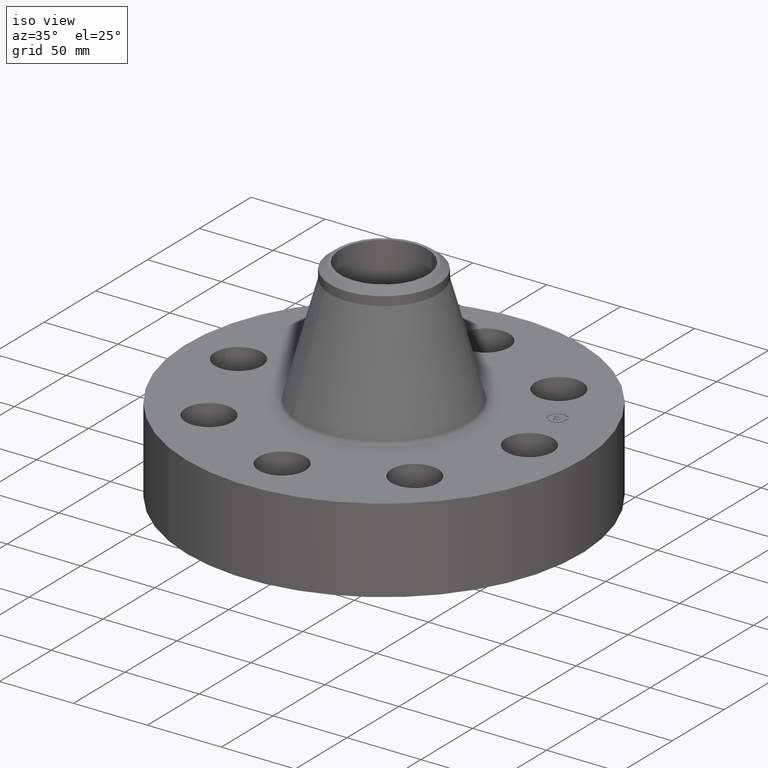
[diagram: clean part render]
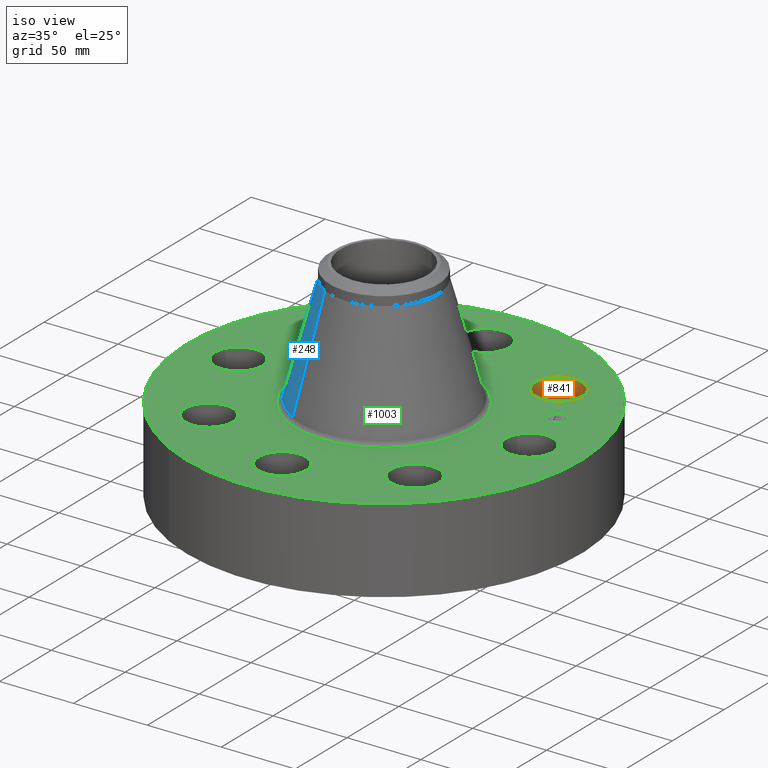
[diagram: same view with three faces highlighted in distinct colors, each labeled with its STEP entity id]
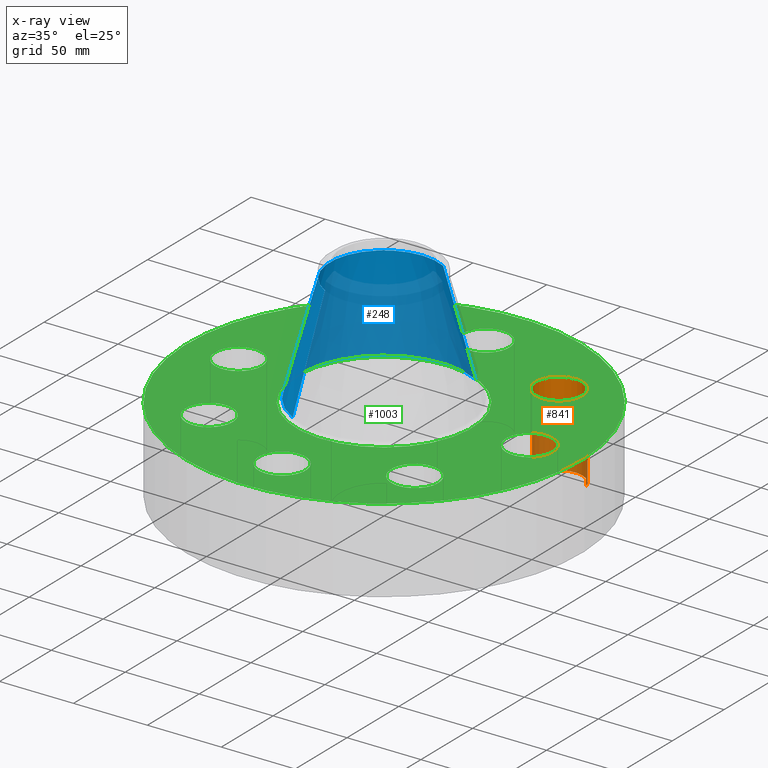
[diagram: x-ray of the same camera — body ghosted, the three highlighted faces saturated]
A machine part, iso view with three faces highlighted in distinct colors.
The next image is the same camera in x-ray (body ghosted, the three faces saturated) — at least one of them is partly hidden behind the body in this view.
Their STEP definitions:

[orange] entity #841 — the highlighted cylindrical surface (edge-blend (fillet) strip) has radius 15.875 mm, axis along (0, 0, -1).
#622=AXIS2_PLACEMENT_3D('Circle Axis2P3D',#620,#621,$) ;
#814=AXIS2_PLACEMENT_3D('Cylinder Axis2P3D',#811,#812,#813) ;
#832=AXIS2_PLACEMENT_3D('Circle Axis2P3D',#830,#831,$) ;
#620=CARTESIAN_POINT('Axis2P3D Location',(2.74003877711,2.74003877711,0.)) ;
#624=CARTESIAN_POINT('Vertex',(2.14032025837,2.56407657014,0.)) ;
#626=CARTESIAN_POINT('Vertex',(3.33975729585,2.91600098407,-2.79741234551E-016)) ;
#811=CARTESIAN_POINT('Axis2P3D Location',(2.74003877711,2.74003877711,2.24606299213)) ;
#816=CARTESIAN_POINT('Line Origine',(2.14032025837,2.56407657014,1.125)) ;
#820=CARTESIAN_POINT('Vertex',(2.14032025837,2.56407657014,2.25000000001)) ;
#823=CARTESIAN_POINT('Line Origine',(3.33975729585,2.91600098407,1.125)) ;
#827=CARTESIAN_POINT('Vertex',(3.33975729585,2.91600098407,2.25000000001)) ;
#830=CARTESIAN_POINT('Axis2P3D Location',(2.74003877711,2.74003877711,2.25000000001)) ;
#621=DIRECTION('Axis2P3D Direction',(0.,0.,-0.0393700787402)) ;
#812=DIRECTION('Axis2P3D Direction',(0.,0.,-0.0393700787402)) ;
#813=DIRECTION('Axis2P3D XDirection',(0.0377775444876,0.0110842335096,0.)) ;
#817=DIRECTION('Vector Direction',(0.,0.,-0.0393700787402)) ;
#824=DIRECTION('Vector Direction',(0.,0.,-0.0393700787402)) ;
#831=DIRECTION('Axis2P3D Direction',(0.,0.,-0.0393700787402)) ;
#818=VECTOR('Line Direction',#817,0.0393700787402) ;
#825=VECTOR('Line Direction',#824,0.0393700787402) ;
#836=ORIENTED_EDGE('',*,*,#822,.F.) ;
#837=ORIENTED_EDGE('',*,*,#628,.T.) ;
#838=ORIENTED_EDGE('',*,*,#829,.T.) ;
#839=ORIENTED_EDGE('',*,*,#834,.F.) ;
#841=ADVANCED_FACE('PartBody',(#840),#815,.F.) ;
#623=CIRCLE('generated circle',#622,0.625000000003) ;
#833=CIRCLE('generated circle',#832,0.625000000003) ;
#815=CYLINDRICAL_SURFACE('generated cylinder',#814,0.625000000003) ;
#628=EDGE_CURVE('',#625,#627,#623,.T.) ;
#822=EDGE_CURVE('',#625,#821,#819,.F.) ;
#829=EDGE_CURVE('',#627,#828,#826,.F.) ;
#834=EDGE_CURVE('',#821,#828,#833,.T.) ;
#835=EDGE_LOOP('',(#836,#837,#838,#839)) ;
#840=FACE_OUTER_BOUND('',#835,.T.) ;
#819=LINE('Line',#816,#818) ;
#826=LINE('Line',#823,#825) ;
#625=VERTEX_POINT('',#624) ;
#627=VERTEX_POINT('',#626) ;
#821=VERTEX_POINT('',#820) ;
#828=VERTEX_POINT('',#827) ;

[blue] entity #248 — the highlighted conical surface has half-angle 15.204 deg.
#196=AXIS2_PLACEMENT_3D('Circle Axis2P3D',#194,#195,$) ;
#209=AXIS2_PLACEMENT_3D('Cone Axis2P3D',#206,#207,#208) ;
#239=AXIS2_PLACEMENT_3D('Circle Axis2P3D',#237,#238,$) ;
#167=CARTESIAN_POINT('Vertex',(1.06717279304,1.95344669461,2.33852946514)) ;
#174=CARTESIAN_POINT('Vertex',(-1.06717279304,-1.95344669461,2.33852946514)) ;
#194=CARTESIAN_POINT('Axis2P3D Location',(0.,0.,2.33852946514)) ;
#206=CARTESIAN_POINT('Axis2P3D Location',(0.,0.,5.2304984093)) ;
#211=CARTESIAN_POINT('Line Origine',(0.878772784319,1.60858279187,3.78451393722)) ;
#215=CARTESIAN_POINT('Vertex',(0.690372775593,1.26371888913,5.2304984093)) ;
#222=CARTESIAN_POINT('Vertex',(-0.690372775593,-1.26371888913,5.2304984093)) ;
#225=CARTESIAN_POINT('Line Origine',(-0.878772784319,-1.60858279187,3.78451393722)) ;
#237=CARTESIAN_POINT('Axis2P3D Location',(0.,0.,5.2304984093)) ;
#195=DIRECTION('Axis2P3D Direction',(0.,0.,-0.0393700787402)) ;
#207=DIRECTION('Axis2P3D Direction',(0.,0.,-0.0393700787402)) ;
#208=DIRECTION('Axis2P3D XDirection',(-0.0188750212049,-0.0345504945626,0.)) ;
#212=DIRECTION('Vector Direction',(0.00495005844131,0.00906102119858,-0.0379920770197)) ;
#226=DIRECTION('Vector Direction',(-0.00495005844131,-0.00906102119858,-0.0379920770197)) ;
#238=DIRECTION('Axis2P3D Direction',(0.,0.,-0.0393700787402)) ;
#213=VECTOR('Line Direction',#212,0.0393700787402) ;
#227=VECTOR('Line Direction',#226,0.0393700787402) ;
#243=ORIENTED_EDGE('',*,*,#198,.F.) ;
#244=ORIENTED_EDGE('',*,*,#229,.T.) ;
#245=ORIENTED_EDGE('',*,*,#241,.T.) ;
#246=ORIENTED_EDGE('',*,*,#217,.F.) ;
#248=ADVANCED_FACE('PartBody',(#247),#210,.T.) ;
#197=CIRCLE('generated circle',#196,2.22594064586) ;
#240=CIRCLE('generated circle',#239,1.44000000001) ;
#210=CONICAL_SURFACE('Cone',#209,1.44000000001,0.265357691976) ;
#198=EDGE_CURVE('',#175,#168,#197,.T.) ;
#217=EDGE_CURVE('',#168,#216,#214,.F.) ;
#229=EDGE_CURVE('',#175,#223,#228,.F.) ;
#241=EDGE_CURVE('',#223,#216,#240,.T.) ;
#242=EDGE_LOOP('',(#243,#244,#245,#246)) ;
#247=FACE_OUTER_BOUND('',#242,.T.) ;
#214=LINE('Line',#211,#213) ;
#228=LINE('Line',#225,#227) ;
#168=VERTEX_POINT('',#167) ;
#175=VERTEX_POINT('',#174) ;
#216=VERTEX_POINT('',#215) ;
#223=VERTEX_POINT('',#222) ;

[green] entity #1003 — the highlighted planar face has unit normal (0, 0, -1).
#65=AXIS2_PLACEMENT_3D('Circle Axis2P3D',#63,#64,$) ;
#82=AXIS2_PLACEMENT_3D('Circle Axis2P3D',#80,#81,$) ;
#115=AXIS2_PLACEMENT_3D('Circle Axis2P3D',#113,#114,$) ;
#139=AXIS2_PLACEMENT_3D('Circle Axis2P3D',#137,#138,$) ;
#156=AXIS2_PLACEMENT_3D('Circle Axis2P3D',#154,#155,$) ;
#191=AXIS2_PLACEMENT_3D('Circle Axis2P3D',#189,#190,$) ;
#660=AXIS2_PLACEMENT_3D('Circle Axis2P3D',#658,#659,$) ;
#672=AXIS2_PLACEMENT_3D('Circle Axis2P3D',#670,#671,$) ;
#703=AXIS2_PLACEMENT_3D('Circle Axis2P3D',#701,#702,$) ;
#715=AXIS2_PLACEMENT_3D('Circle Axis2P3D',#713,#714,$) ;
#746=AXIS2_PLACEMENT_3D('Circle Axis2P3D',#744,#745,$) ;
#758=AXIS2_PLACEMENT_3D('Circle Axis2P3D',#756,#757,$) ;
#789=AXIS2_PLACEMENT_3D('Circle Axis2P3D',#787,#788,$) ;
#801=AXIS2_PLACEMENT_3D('Circle Axis2P3D',#799,#800,$) ;
#832=AXIS2_PLACEMENT_3D('Circle Axis2P3D',#830,#831,$) ;
#844=AXIS2_PLACEMENT_3D('Circle Axis2P3D',#842,#843,$) ;
#875=AXIS2_PLACEMENT_3D('Circle Axis2P3D',#873,#874,$) ;
#887=AXIS2_PLACEMENT_3D('Circle Axis2P3D',#885,#886,$) ;
#918=AXIS2_PLACEMENT_3D('Circle Axis2P3D',#916,#917,$) ;
#930=AXIS2_PLACEMENT_3D('Circle Axis2P3D',#928,#929,$) ;
#943=AXIS2_PLACEMENT_3D('Plane Axis2P3D',#940,#941,#942) ;
#987=AXIS2_PLACEMENT_3D('Circle Axis2P3D',#985,#986,$) ;
#996=AXIS2_PLACEMENT_3D('Circle Axis2P3D',#994,#995,$) ;
#46=CARTESIAN_POINT('Vertex',(3.32651089883,0.299640961629,2.25000000001)) ;
#60=CARTESIAN_POINT('Vertex',(4.4234891012,-0.299640961629,2.25000000001)) ;
#63=CARTESIAN_POINT('Axis2P3D Location',(3.87500000002,0.,2.25000000001)) ;
#80=CARTESIAN_POINT('Axis2P3D Location',(3.87500000002,0.,2.25000000001)) ;
#110=CARTESIAN_POINT('Vertex',(-2.51698407768,-4.60730844994,2.25000000001)) ;
#113=CARTESIAN_POINT('Axis2P3D Location',(0.,0.,2.25000000001)) ;
#117=CARTESIAN_POINT('Vertex',(2.51698407768,4.60730844994,2.25000000001)) ;
#137=CARTESIAN_POINT('Axis2P3D Location',(0.,0.,2.25000000001)) ;
#154=CARTESIAN_POINT('Axis2P3D Location',(0.,0.,2.25000000001)) ;
#158=CARTESIAN_POINT('Vertex',(1.12269019886,2.05507062431,2.25000000001)) ;
#160=CARTESIAN_POINT('Vertex',(-1.12269019886,-2.05507062431,2.25000000001)) ;
#189=CARTESIAN_POINT('Axis2P3D Location',(0.,0.,2.25000000001)) ;
#648=CARTESIAN_POINT('Vertex',(-2.56407657014,2.14032025837,2.25000000001)) ;
#655=CARTESIAN_POINT('Vertex',(-2.91600098407,3.33975729585,2.25000000001)) ;
#658=CARTESIAN_POINT('Axis2P3D Location',(-2.74003877711,2.74003877711,2.25000000001)) ;
#670=CARTESIAN_POINT('Axis2P3D Location',(-2.74003877711,2.74003877711,2.25000000001)) ;
#691=CARTESIAN_POINT('Vertex',(0.299640961629,-3.32651089883,2.25000000001)) ;
#698=CARTESIAN_POINT('Vertex',(-0.299640961629,-4.4234891012,2.25000000001)) ;
#701=CARTESIAN_POINT('Axis2P3D Location',(2.37275317336E-016,-3.87500000002,2.25000000001)) ;
#713=CARTESIAN_POINT('Axis2P3D Location',(2.37275317336E-016,-3.87500000002,2.25000000001)) ;
#734=CARTESIAN_POINT('Vertex',(-0.299640961629,3.32651089883,2.25000000001)) ;
#741=CARTESIAN_POINT('Vertex',(0.299640961629,4.4234891012,2.25000000001)) ;
#744=CARTESIAN_POINT('Axis2P3D Location',(-1.52343482905E-016,3.87500000002,2.25000000001)) ;
#756=CARTESIAN_POINT('Axis2P3D Location',(-1.52343482905E-016,3.87500000002,2.25000000001)) ;
#777=CARTESIAN_POINT('Vertex',(-2.14032025837,-2.56407657014,2.25000000001)) ;
#784=CARTESIAN_POINT('Vertex',(-3.33975729585,-2.91600098407,2.25000000001)) ;
#787=CARTESIAN_POINT('Axis2P3D Location',(-2.74003877711,-2.74003877711,2.25000000001)) ;
#799=CARTESIAN_POINT('Axis2P3D Location',(-2.74003877711,-2.74003877711,2.25000000001)) ;
#820=CARTESIAN_POINT('Vertex',(2.14032025837,2.56407657014,2.25000000001)) ;
#827=CARTESIAN_POINT('Vertex',(3.33975729585,2.91600098407,2.25000000001)) ;
#830=CARTESIAN_POINT('Axis2P3D Location',(2.74003877711,2.74003877711,2.25000000001)) ;
#842=CARTESIAN_POINT('Axis2P3D Location',(2.74003877711,2.74003877711,2.25000000001)) ;
#863=CARTESIAN_POINT('Vertex',(-3.32651089883,-0.299640961629,2.25000000001)) ;
#870=CARTESIAN_POINT('Vertex',(-4.4234891012,0.299640961629,2.25000000001)) ;
#873=CARTESIAN_POINT('Axis2P3D Location',(-3.87500000002,-4.74550634671E-016,2.25000000001)) ;
#885=CARTESIAN_POINT('Axis2P3D Location',(-3.87500000002,-4.74550634671E-016,2.25000000001)) ;
#906=CARTESIAN_POINT('Vertex',(2.56407657014,-2.14032025837,2.25000000001)) ;
#913=CARTESIAN_POINT('Vertex',(2.91600098407,-3.33975729585,2.25000000001)) ;
#916=CARTESIAN_POINT('Axis2P3D Location',(2.74003877711,-2.74003877711,2.25000000001)) ;
#928=CARTESIAN_POINT('Axis2P3D Location',(2.74003877711,-2.74003877711,2.25000000001)) ;
#940=CARTESIAN_POINT('Axis2P3D Location',(0.,5.25000000002,2.25000000001)) ;
#985=CARTESIAN_POINT('Axis2P3D Location',(3.5800331885,1.48289830042,2.25000000001)) ;
#989=CARTESIAN_POINT('Vertex',(3.48531903898,1.71155848472,2.25000000001)) ;
#991=CARTESIAN_POINT('Vertex',(3.67474733801,1.25423811612,2.25000000001)) ;
#994=CARTESIAN_POINT('Axis2P3D Location',(3.5800331885,1.48289830042,2.25000000001)) ;
#64=DIRECTION('Axis2P3D Direction',(0.,-0.,-0.0393700787402)) ;
#81=DIRECTION('Axis2P3D Direction',(0.,-0.,-0.0393700787402)) ;
#114=DIRECTION('Axis2P3D Direction',(0.,0.,-0.0393700787402)) ;
#138=DIRECTION('Axis2P3D Direction',(0.,0.,-0.0393700787402)) ;
#155=DIRECTION('Axis2P3D Direction',(0.,0.,-0.0393700787402)) ;
#190=DIRECTION('Axis2P3D Direction',(0.,0.,-0.0393700787402)) ;
#659=DIRECTION('Axis2P3D Direction',(0.,0.,-0.0393700787402)) ;
#671=DIRECTION('Axis2P3D Direction',(0.,0.,-0.0393700787402)) ;
#702=DIRECTION('Axis2P3D Direction',(0.,-0.,-0.0393700787402)) ;
#714=DIRECTION('Axis2P3D Direction',(0.,-0.,-0.0393700787402)) ;
#745=DIRECTION('Axis2P3D Direction',(0.,0.,-0.0393700787402)) ;
#757=DIRECTION('Axis2P3D Direction',(0.,0.,-0.0393700787402)) ;
#788=DIRECTION('Axis2P3D Direction',(-0.,0.,-0.0393700787402)) ;
#800=DIRECTION('Axis2P3D Direction',(-0.,0.,-0.0393700787402)) ;
#831=DIRECTION('Axis2P3D Direction',(0.,0.,-0.0393700787402)) ;
#843=DIRECTION('Axis2P3D Direction',(0.,0.,-0.0393700787402)) ;
#874=DIRECTION('Axis2P3D Direction',(-0.,0.,-0.0393700787402)) ;
#886=DIRECTION('Axis2P3D Direction',(-0.,0.,-0.0393700787402)) ;
#917=DIRECTION('Axis2P3D Direction',(0.,-0.,-0.0393700787402)) ;
#929=DIRECTION('Axis2P3D Direction',(0.,-0.,-0.0393700787402)) ;
#941=DIRECTION('Axis2P3D Direction',(0.,0.,-0.0393700787402)) ;
#942=DIRECTION('Axis2P3D XDirection',(0.0393700787402,0.,0.)) ;
#986=DIRECTION('Axis2P3D Direction',(0.,0.,-0.0393700787402)) ;
#995=DIRECTION('Axis2P3D Direction',(0.,0.,-0.0393700787402)) ;
#946=ORIENTED_EDGE('',*,*,#141,.F.) ;
#947=ORIENTED_EDGE('',*,*,#119,.F.) ;
#950=ORIENTED_EDGE('',*,*,#67,.T.) ;
#951=ORIENTED_EDGE('',*,*,#84,.T.) ;
#954=ORIENTED_EDGE('',*,*,#193,.T.) ;
#955=ORIENTED_EDGE('',*,*,#162,.T.) ;
#958=ORIENTED_EDGE('',*,*,#932,.T.) ;
#959=ORIENTED_EDGE('',*,*,#920,.T.) ;
#962=ORIENTED_EDGE('',*,*,#717,.T.) ;
#963=ORIENTED_EDGE('',*,*,#705,.T.) ;
#966=ORIENTED_EDGE('',*,*,#803,.T.) ;
#967=ORIENTED_EDGE('',*,*,#791,.T.) ;
#970=ORIENTED_EDGE('',*,*,#889,.T.) ;
#971=ORIENTED_EDGE('',*,*,#877,.T.) ;
#974=ORIENTED_EDGE('',*,*,#674,.T.) ;
#975=ORIENTED_EDGE('',*,*,#662,.T.) ;
#978=ORIENTED_EDGE('',*,*,#760,.T.) ;
#979=ORIENTED_EDGE('',*,*,#748,.T.) ;
#982=ORIENTED_EDGE('',*,*,#846,.T.) ;
#983=ORIENTED_EDGE('',*,*,#834,.T.) ;
#1000=ORIENTED_EDGE('',*,*,#993,.T.) ;
#1001=ORIENTED_EDGE('',*,*,#998,.T.) ;
#952=FACE_BOUND('',#949,.T.) ;
#956=FACE_BOUND('',#953,.T.) ;
#960=FACE_BOUND('',#957,.T.) ;
#964=FACE_BOUND('',#961,.T.) ;
#968=FACE_BOUND('',#965,.T.) ;
#972=FACE_BOUND('',#969,.T.) ;
#976=FACE_BOUND('',#973,.T.) ;
#980=FACE_BOUND('',#977,.T.) ;
#984=FACE_BOUND('',#981,.T.) ;
#1002=FACE_BOUND('',#999,.T.) ;
#1003=ADVANCED_FACE('PartBody',(#948,#952,#956,#960,#964,#968,#972,#976,#980,#984,#1002),#944,.F.) ;
#66=CIRCLE('generated circle',#65,0.625000000002) ;
#83=CIRCLE('generated circle',#82,0.625000000002) ;
#116=CIRCLE('generated circle',#115,5.25000000002) ;
#140=CIRCLE('generated circle',#139,5.25000000002) ;
#157=CIRCLE('generated circle',#156,2.34174049662) ;
#192=CIRCLE('generated circle',#191,2.34174049662) ;
#661=CIRCLE('generated circle',#660,0.625000000003) ;
#673=CIRCLE('generated circle',#672,0.625000000003) ;
#704=CIRCLE('generated circle',#703,0.625000000002) ;
#716=CIRCLE('generated circle',#715,0.625000000002) ;
#747=CIRCLE('generated circle',#746,0.625000000002) ;
#759=CIRCLE('generated circle',#758,0.625000000002) ;
#790=CIRCLE('generated circle',#789,0.625000000002) ;
#802=CIRCLE('generated circle',#801,0.625000000002) ;
#833=CIRCLE('generated circle',#832,0.625000000003) ;
#845=CIRCLE('generated circle',#844,0.625000000003) ;
#876=CIRCLE('generated circle',#875,0.625000000002) ;
#888=CIRCLE('generated circle',#887,0.625000000002) ;
#919=CIRCLE('generated circle',#918,0.625000000002) ;
#931=CIRCLE('generated circle',#930,0.625000000002) ;
#988=CIRCLE('generated circle',#987,0.247500000001) ;
#997=CIRCLE('generated circle',#996,0.247500000001) ;
#67=EDGE_CURVE('',#47,#61,#66,.T.) ;
#84=EDGE_CURVE('',#61,#47,#83,.T.) ;
#119=EDGE_CURVE('',#111,#118,#116,.T.) ;
#141=EDGE_CURVE('',#118,#111,#140,.T.) ;
#162=EDGE_CURVE('',#159,#161,#157,.T.) ;
#193=EDGE_CURVE('',#161,#159,#192,.T.) ;
#662=EDGE_CURVE('',#649,#656,#661,.T.) ;
#674=EDGE_CURVE('',#656,#649,#673,.T.) ;
#705=EDGE_CURVE('',#692,#699,#704,.T.) ;
#717=EDGE_CURVE('',#699,#692,#716,.T.) ;
#748=EDGE_CURVE('',#735,#742,#747,.T.) ;
#760=EDGE_CURVE('',#742,#735,#759,.T.) ;
#791=EDGE_CURVE('',#778,#785,#790,.T.) ;
#803=EDGE_CURVE('',#785,#778,#802,.T.) ;
#834=EDGE_CURVE('',#821,#828,#833,.T.) ;
#846=EDGE_CURVE('',#828,#821,#845,.T.) ;
#877=EDGE_CURVE('',#864,#871,#876,.T.) ;
#889=EDGE_CURVE('',#871,#864,#888,.T.) ;
#920=EDGE_CURVE('',#907,#914,#919,.T.) ;
#932=EDGE_CURVE('',#914,#907,#931,.T.) ;
#993=EDGE_CURVE('',#990,#992,#988,.T.) ;
#998=EDGE_CURVE('',#992,#990,#997,.T.) ;
#945=EDGE_LOOP('',(#946,#947)) ;
#949=EDGE_LOOP('',(#950,#951)) ;
#953=EDGE_LOOP('',(#954,#955)) ;
#957=EDGE_LOOP('',(#958,#959)) ;
#961=EDGE_LOOP('',(#962,#963)) ;
#965=EDGE_LOOP('',(#966,#967)) ;
#969=EDGE_LOOP('',(#970,#971)) ;
#973=EDGE_LOOP('',(#974,#975)) ;
#977=EDGE_LOOP('',(#978,#979)) ;
#981=EDGE_LOOP('',(#982,#983)) ;
#999=EDGE_LOOP('',(#1000,#1001)) ;
#948=FACE_OUTER_BOUND('',#945,.T.) ;
#944=PLANE('',#943) ;
#47=VERTEX_POINT('',#46) ;
#61=VERTEX_POINT('',#60) ;
#111=VERTEX_POINT('',#110) ;
#118=VERTEX_POINT('',#117) ;
#159=VERTEX_POINT('',#158) ;
#161=VERTEX_POINT('',#160) ;
#649=VERTEX_POINT('',#648) ;
#656=VERTEX_POINT('',#655) ;
#692=VERTEX_POINT('',#691) ;
#699=VERTEX_POINT('',#698) ;
#735=VERTEX_POINT('',#734) ;
#742=VERTEX_POINT('',#741) ;
#778=VERTEX_POINT('',#777) ;
#785=VERTEX_POINT('',#784) ;
#821=VERTEX_POINT('',#820) ;
#828=VERTEX_POINT('',#827) ;
#864=VERTEX_POINT('',#863) ;
#871=VERTEX_POINT('',#870) ;
#907=VERTEX_POINT('',#906) ;
#914=VERTEX_POINT('',#913) ;
#990=VERTEX_POINT('',#989) ;
#992=VERTEX_POINT('',#991) ;